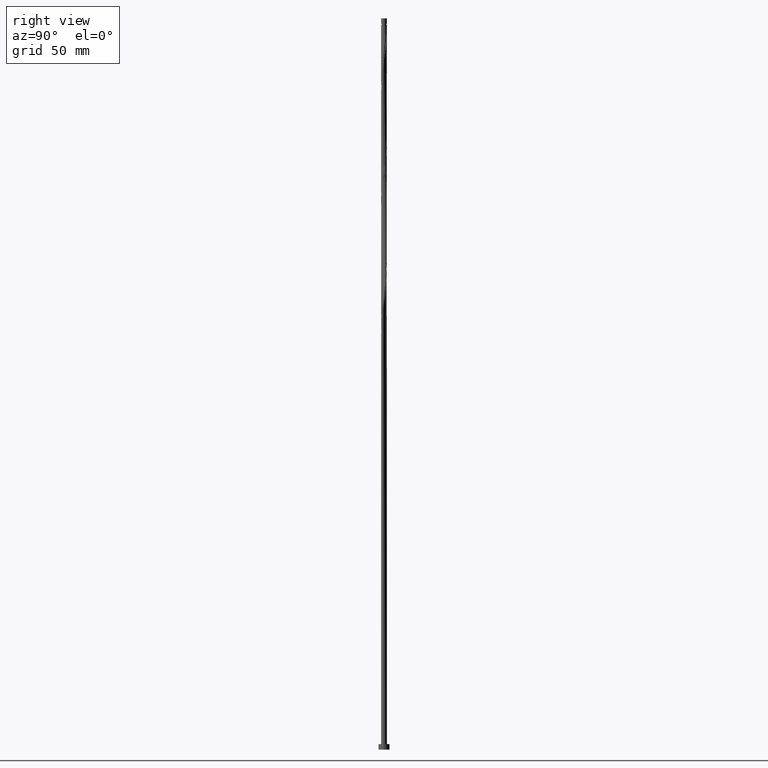
[diagram: clean part render]
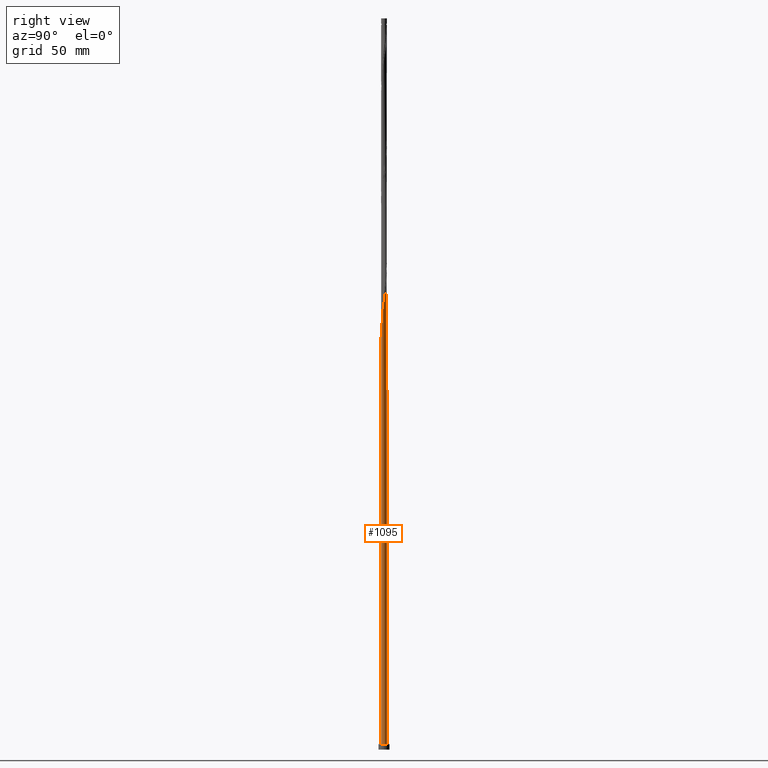
[diagram: same view with one face highlighted and labeled with its STEP entity id]
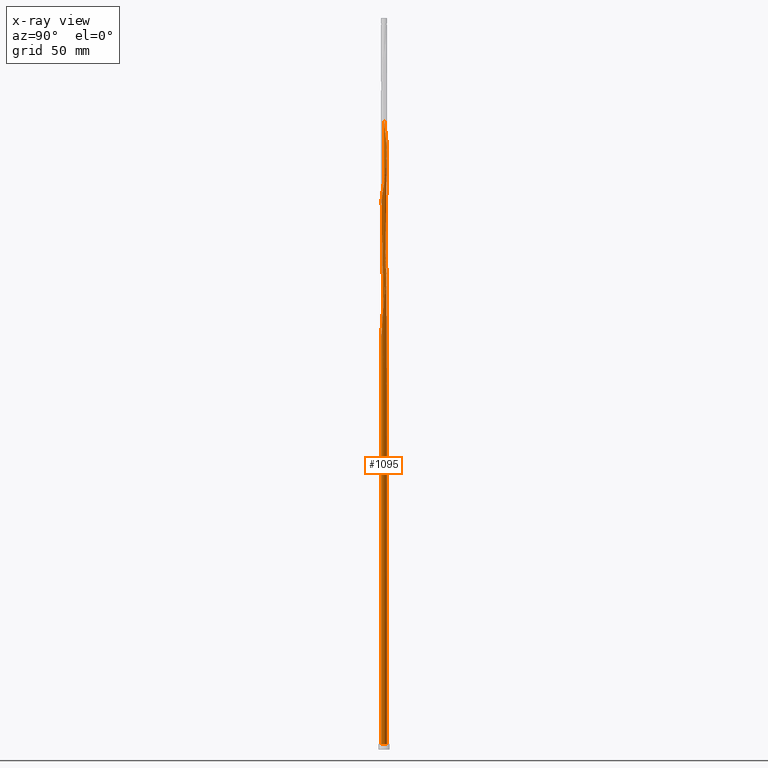
[diagram: x-ray of the same camera — body ghosted, the highlighted face saturated]
A machine part, right view. The second image highlights one B-rep face of the part: STEP entity #1095.
The next image is the same camera in x-ray: the body ghosted, the highlighted face saturated — about 0% of this face is hidden behind the body in this view.
In plain terms, the highlighted cylindrical surface (bore or boss wall) has radius 1.6 mm, axis along (-0, -0, -1).
Its self-contained STEP definition (entity closure, byte-faithful):
#4 = CARTESIAN_POINT ( 'NONE',  ( -0.4831994207707027145, 1.534535234023666650, 330.8669904220065519 ) ) ;
#26 = CARTESIAN_POINT ( 'NONE',  ( -0.7916881692281139138, 1.400539148827139480, 333.0892126442287804 ) ) ;
#27 = CARTESIAN_POINT ( 'NONE',  ( -1.065576345748934672, 1.205332782294399774, 201.9781015331176945 ) ) ;
#33 = AXIS2_PLACEMENT_3D ( 'NONE', #301, #893, #1434 ) ;
#35 = CARTESIAN_POINT ( 'NONE',  ( -1.517125823071062030, 0.5082609929661727755, 340.8669904220065519 ) ) ;
#36 = CARTESIAN_POINT ( 'NONE',  ( -1.087346785281440686, 1.185730590493186298, 206.4225459775621232 ) ) ;
#56 = CARTESIAN_POINT ( 'NONE',  ( 0.7916881692281136917, -1.400539148827139702, 233.0892126442287235 ) ) ;
#63 = CARTESIAN_POINT ( 'NONE',  ( 1.589646386272570044, -0.1817260757584543140, 243.0892126442288088 ) ) ;
#71 = CARTESIAN_POINT ( 'NONE',  ( 1.475620796545632496, 0.6409550136282925470, 248.6447681997842949 ) ) ;
#100 = CARTESIAN_POINT ( 'NONE',  ( -0.1535925389775395500, 1.601464765976337468, 261.9781015331175809 ) ) ;
#112 = CARTESIAN_POINT ( 'NONE',  ( 0.5110606366066614559, 1.525482576237567223, 324.2003237553399231 ) ) ;
#122 = CARTESIAN_POINT ( 'NONE',  ( -1.310112901112438610, -0.9337474235744704920, 284.2003237553398094 ) ) ;
#132 = CARTESIAN_POINT ( 'NONE',  ( 0.3468938551971877948, 1.561942589606429843, 258.6447681997843233 ) ) ;
#143 = CARTESIAN_POINT ( 'NONE',  ( -1.592691774424295437, -0.1527511429783690311, 278.6447681997843802 ) ) ;
#149 = VERTEX_POINT ( 'NONE', #1861 ) ;
#155 = CARTESIAN_POINT ( 'NONE',  ( -0.3183959798741215486, 1.568000000000001837, 329.7558793108955228 ) ) ;
#156 = CARTESIAN_POINT ( 'NONE',  ( -1.292893722757919139, 0.9574475893469993615, 204.2003237553398662 ) ) ;
#164 = CARTESIAN_POINT ( 'NONE',  ( -0.1535925389775395500, 1.601464765976337468, 328.6447681997843233 ) ) ;
#165 = CARTESIAN_POINT ( 'NONE',  ( -1.600000000000000533, 0.07655039885880274286, 214.7061073621861738 ) ) ;
#173 = CARTESIAN_POINT ( 'NONE',  ( -0.6374437949994082864, 1.467537191425403620, 331.9781015331176945 ) ) ;
#200 = CARTESIAN_POINT ( 'NONE',  ( -0.01456726740508640719, -1.599933684475815410, 227.5336570886732375 ) ) ;
#210 = CARTESIAN_POINT ( 'NONE',  ( 1.065576345748934228, -1.205332782294399996, 235.3114348664510374 ) ) ;
#219 = CARTESIAN_POINT ( 'NONE',  ( 0.9286322574885240710, -1.302935965560770404, 234.2003237553398947 ) ) ;
#226 = CARTESIAN_POINT ( 'NONE',  ( -0.1827270737877125795, -1.598402602975293130, 226.4225459775620664 ) ) ;
#238 = CARTESIAN_POINT ( 'NONE',  ( -0.3183959798741213820, 1.568000000000001837, 196.4225459775620948 ) ) ;
#243 = CARTESIAN_POINT ( 'NONE',  ( 1.087346785281442907, 1.185730590493187186, 319.7558793108954660 ) ) ;
#246 = LINE ( 'NONE', #398, #559 ) ;
#253 = CARTESIAN_POINT ( 'NONE',  ( -1.589646386272570044, 0.1817260757584541198, 276.4225459775620948 ) ) ;
#267 = CARTESIAN_POINT ( 'NONE',  ( 0.1535925389775404382, -1.601464765976337468, 295.3114348664510658 ) ) ;
#276 = CARTESIAN_POINT ( 'NONE',  ( 0.6374437949994080643, -1.467537191425403620, 298.6447681997844370 ) ) ;
#285 = CARTESIAN_POINT ( 'NONE',  ( 0.5110606366066614559, 1.525482576237567223, 257.5336570886731806 ) ) ;
#286 = CARTESIAN_POINT ( 'NONE',  ( -1.378299581423949371, 0.8125824658744330575, 205.3114348664510374 ) ) ;
#296 = CARTESIAN_POINT ( 'NONE',  ( -0.9286322574885245151, 1.302935965560769516, 200.8669904220065519 ) ) ;
#301 = CARTESIAN_POINT ( 'NONE',  ( 0.000000000000000000, 0.000000000000000000, 3.000000000000000000 ) ) ;
#314 = CARTESIAN_POINT ( 'NONE',  ( -1.179235034253427461, 1.081390185820699346, 336.4225459775620948 ) ) ;
#315 = CARTESIAN_POINT ( 'NONE',  ( -0.3183959798741213265, 1.568000000000001837, 196.4225459775621232 ) ) ;
#321 = CARTESIAN_POINT ( 'NONE',  ( -1.600000000000003197, 0.09115797991428506442, 343.6915114246560279 ) ) ;
#322 = CARTESIAN_POINT ( 'NONE',  ( -0.9522025912731599817, 1.285811115666947391, 205.3114348664510374 ) ) ;
#349 = CARTESIAN_POINT ( 'NONE',  ( -1.526128889450613979, -0.4805524037857309416, 214.2003237553398662 ) ) ;
#358 = CARTESIAN_POINT ( 'NONE',  ( -0.6640595169357709215, -1.455687108539138963, 223.0892126442287235 ) ) ;
#368 = CARTESIAN_POINT ( 'NONE',  ( 0.9522025912731623132, 1.285811115666948501, 254.2003237553398947 ) ) ;
#372 = ORIENTED_EDGE ( 'NONE', *, *, #902, .F. ) ;
#377 = CARTESIAN_POINT ( 'NONE',  ( -0.9522025912731623132, -1.285811115666948501, 220.8669904220065803 ) ) ;
#389 = CARTESIAN_POINT ( 'NONE',  ( 1.526128889450614423, 0.4805524037857303865, 314.2003237553399799 ) ) ;
#390 = CARTESIAN_POINT ( 'NONE',  ( 0.3183959798741219371, 1.567999999999999838, 196.4225459775620948 ) ) ;
#397 = CARTESIAN_POINT ( 'NONE',  ( 0.9522025912731623132, 1.285811115666948501, 320.8669904220067224 ) ) ;
#398 = CARTESIAN_POINT ( 'NONE',  ( -1.600000000000000089, 0.000000000000000000, 400.0000000000000000 ) ) ;
#405 = CARTESIAN_POINT ( 'NONE',  ( -0.01456726740508640719, -1.599933684475815410, 294.2003237553399231 ) ) ;
#406 = CARTESIAN_POINT ( 'NONE',  ( -1.600000000000000755, -2.018036081789663311E-16, 215.2146558877503253 ) ) ;
#412 = VERTEX_POINT ( 'NONE', #1540 ) ;
#418 = CARTESIAN_POINT ( 'NONE',  ( -1.517125823071062030, 0.5082609929661727755, 274.2003237553399799 ) ) ;
#419 = LINE ( 'NONE', #856, #969 ) ;
#430 = CARTESIAN_POINT ( 'NONE',  ( -1.576636982355595462, -0.3201497939431680595, 279.7558793108952955 ) ) ;
#431 = CARTESIAN_POINT ( 'NONE',  ( -1.463705440089979160, 0.6677173424018663095, 206.4225459775621232 ) ) ;
#436 = ORIENTED_EDGE ( 'NONE', *, *, #470, .T. ) ;
#440 = CARTESIAN_POINT ( 'NONE',  ( -1.378299581423949371, 0.8125824658744330575, 338.6447681997844370 ) ) ;
#441 = CARTESIAN_POINT ( 'NONE',  ( -0.01456726740508541146, 1.599933684475813411, 198.6447681997843233 ) ) ;
#449 = CARTESIAN_POINT ( 'NONE',  ( -1.517125823071062030, 0.5082609929661727755, 207.5336570886732375 ) ) ;
#470 = EDGE_CURVE ( 'NONE', #1537, #412, #603, .T. ) ;
#509 = CARTESIAN_POINT ( 'NONE',  ( 1.310112901112438832, 0.9337474235744698259, 250.8669904220065519 ) ) ;
#514 = ORIENTED_EDGE ( 'NONE', *, *, #1660, .F. ) ;
#518 = ORIENTED_EDGE ( 'NONE', *, *, #723, .F. ) ;
#519 = CARTESIAN_POINT ( 'NONE',  ( -1.198729843196940870, -1.059739007033828617, 218.6447681997843517 ) ) ;
#522 = ORIENTED_EDGE ( 'NONE', *, *, #681, .T. ) ;
#528 = CARTESIAN_POINT ( 'NONE',  ( 1.592691774424295659, 0.1527511429783681429, 311.9781015331175809 ) ) ;
#529 = AXIS2_PLACEMENT_3D ( 'NONE', #548, #1689, #1871 ) ;
#538 = CARTESIAN_POINT ( 'NONE',  ( 1.378299581423949371, -0.8125824658744331686, 305.3114348664509521 ) ) ;
#546 = CARTESIAN_POINT ( 'NONE',  ( -1.392866848829035442, -0.7873512186013823522, 283.0892126442287804 ) ) ;
#548 = CARTESIAN_POINT ( 'NONE',  ( 0.000000000000000000, 0.000000000000000000, 3.000000000000000000 ) ) ;
#555 = CARTESIAN_POINT ( 'NONE',  ( -1.463705440089979160, 0.6677173424018663095, 273.0892126442287235 ) ) ;
#559 = VECTOR ( 'NONE', #835, 1000.000000000000000 ) ;
#565 = CARTESIAN_POINT ( 'NONE',  ( -1.065576345748934672, 1.205332782294399774, 268.6447681997842665 ) ) ;
#574 = CARTESIAN_POINT ( 'NONE',  ( -1.600000000000000755, -2.018036081789663311E-16, 215.2146558877503253 ) ) ;
#592 = CARTESIAN_POINT ( 'NONE',  ( 0.01456726740508662056, 1.599933684475815410, 327.5336570886732943 ) ) ;
#593 = CARTESIAN_POINT ( 'NONE',  ( -0.7916881692281139138, 1.400539148827139480, 199.7558793108954376 ) ) ;
#603 = CIRCLE ( 'NONE', #33, 1.600000000000000089 ) ;
#625 = CARTESIAN_POINT ( 'NONE',  ( 1.292893722757918695, -0.9574475893469995835, 237.5336570886732090 ) ) ;
#635 = CARTESIAN_POINT ( 'NONE',  ( 1.592691774424295659, 0.1527511429783681429, 245.3114348664510089 ) ) ;
#644 = CARTESIAN_POINT ( 'NONE',  ( 1.392866848829035442, 0.7873512186013821301, 249.7558793108954376 ) ) ;
#671 = CARTESIAN_POINT ( 'NONE',  ( -1.378299581423949371, 0.8125824658744330575, 271.9781015331175809 ) ) ;
#681 = EDGE_CURVE ( 'NONE', #412, #1537, #1341, .T. ) ;
#685 = CARTESIAN_POINT ( 'NONE',  ( 0.3468938551971877948, 1.561942589606429843, 325.3114348664509521 ) ) ;
#686 = DIRECTION ( 'NONE',  ( -2.407412430484048740E-29, -4.336808689942026571E-14, -1.000000000000000000 ) ) ;
#697 = CARTESIAN_POINT ( 'NONE',  ( 0.6640595169357711436, 1.455687108539138963, 256.4225459775621516 ) ) ;
#703 = VERTEX_POINT ( 'NONE', #406 ) ;
#708 = CARTESIAN_POINT ( 'NONE',  ( 0.3183959798741216596, -1.568000000000001837, 296.4225459775620379 ) ) ;
#719 = CARTESIAN_POINT ( 'NONE',  ( -1.198729843196940870, -1.059739007033828617, 285.3114348664510089 ) ) ;
#720 = CARTESIAN_POINT ( 'NONE',  ( -1.600000000000003197, 0.09115797991428660485, 210.3581780913227135 ) ) ;
#723 = EDGE_CURVE ( 'NONE', #1616, #412, #419, .T. ) ;
#738 = CARTESIAN_POINT ( 'NONE',  ( -1.292893722757919139, 0.9574475893469993615, 337.5336570886732375 ) ) ;
#739 = CARTESIAN_POINT ( 'NONE',  ( 0.1535925389775409378, 1.601464765976335469, 197.5336570886731806 ) ) ;
#752 = CARTESIAN_POINT ( 'NONE',  ( -1.392866848829033222, 0.7873512186013812419, 209.7558793108954092 ) ) ;
#758 = CARTESIAN_POINT ( 'NONE',  ( -1.463705440089979160, 0.6677173424018663095, 339.7558793108954092 ) ) ;
#759 = CARTESIAN_POINT ( 'NONE',  ( -1.475620796545629831, 0.6409550136282937682, 210.8669904220065803 ) ) ;
#776 = AXIS2_PLACEMENT_3D ( 'NONE', #1169, #1632, #1497 ) ;
#783 = CARTESIAN_POINT ( 'NONE',  ( -1.600000000000002531, 8.819565098191803354E-16, 210.9637694007072639 ) ) ;
#791 = CARTESIAN_POINT ( 'NONE',  ( 1.517125823071062474, -0.5082609929661735526, 240.8669904220065519 ) ) ;
#804 = CARTESIAN_POINT ( 'NONE',  ( 1.600000000000000089, 0.000000000000000000, 3.000000000000000000 ) ) ;
#811 = CARTESIAN_POINT ( 'NONE',  ( 1.608746566492994745, -0.01464750798643017597, 244.2003237553398947 ) ) ;
#820 = CARTESIAN_POINT ( 'NONE',  ( -0.3468938551971870732, -1.561942589606430287, 225.3114348664510374 ) ) ;
#834 = CARTESIAN_POINT ( 'NONE',  ( 0.7916881692281136917, -1.400539148827139702, 299.7558793108954092 ) ) ;
#835 = DIRECTION ( 'NONE',  ( -0.000000000000000000, -0.000000000000000000, -1.000000000000000000 ) ) ;
#843 = CARTESIAN_POINT ( 'NONE',  ( 1.570546206052145122, -0.3488046435304797965, 308.6447681997842665 ) ) ;
#855 = CARTESIAN_POINT ( 'NONE',  ( -1.292893722757919139, 0.9574475893469993615, 270.8669904220065519 ) ) ;
#856 = CARTESIAN_POINT ( 'NONE',  ( -1.600000000000000089, 0.000000000000000000, 400.0000000000000000 ) ) ;
#857 = VERTEX_POINT ( 'NONE', #390 ) ;
#866 = CARTESIAN_POINT ( 'NONE',  ( -1.179235034253427461, 1.081390185820699346, 269.7558793108954092 ) ) ;
#875 = CARTESIAN_POINT ( 'NONE',  ( -0.3183959798741215486, 1.568000000000001837, 263.0892126442287804 ) ) ;
#876 = EDGE_CURVE ( 'NONE', #1533, #857, #910, .T. ) ;
#877 = CARTESIAN_POINT ( 'NONE',  ( -1.589646386272570044, 0.1817260757584541198, 209.7558793108954660 ) ) ;
#888 = FACE_OUTER_BOUND ( 'NONE', #1864, .T. ) ;
#891 = ORIENTED_EDGE ( 'NONE', *, *, #1132, .F. ) ;
#893 = DIRECTION ( 'NONE',  ( 0.000000000000000000, 0.000000000000000000, 1.000000000000000000 ) ) ;
#902 = EDGE_CURVE ( 'NONE', #149, #703, #246, .T. ) ;
#910 = CIRCLE ( 'NONE', #1277, 1.600000000000000089 ) ;
#916 = CARTESIAN_POINT ( 'NONE',  ( -0.6640595169357694783, 1.455687108539137187, 203.0892126442288088 ) ) ;
#935 = CARTESIAN_POINT ( 'NONE',  ( -1.576636982355595462, -0.3201497939431680595, 213.0892126442287520 ) ) ;
#945 = CARTESIAN_POINT ( 'NONE',  ( 1.378299581423949371, -0.8125824658744331686, 238.6447681997843802 ) ) ;
#953 = CARTESIAN_POINT ( 'NONE',  ( 1.576636982355595462, 0.3201497939431680595, 246.4225459775620664 ) ) ;
#963 = CARTESIAN_POINT ( 'NONE',  ( 1.179235034253427017, -1.081390185820699346, 236.4225459775621232 ) ) ;
#969 = VECTOR ( 'NONE', #1147, 1000.000000000000000 ) ;
#979 = CARTESIAN_POINT ( 'NONE',  ( 1.310112901112438832, 0.9337474235744698259, 317.5336570886731806 ) ) ;
#980 = CARTESIAN_POINT ( 'NONE',  ( 0.000000000000000000, 0.000000000000000000, 196.4225459775621516 ) ) ;
#987 = CARTESIAN_POINT ( 'NONE',  ( 0.6640595169357711436, 1.455687108539138963, 323.0892126442287804 ) ) ;
#1000 = CARTESIAN_POINT ( 'NONE',  ( 1.065576345748934228, -1.205332782294399996, 301.9781015331176377 ) ) ;
#1011 = CARTESIAN_POINT ( 'NONE',  ( -1.475620796545631830, -0.6409550136282935462, 281.9781015331176377 ) ) ;
#1021 = CARTESIAN_POINT ( 'NONE',  ( 1.517125823071062474, -0.5082609929661735526, 307.5336570886731238 ) ) ;
#1022 = CARTESIAN_POINT ( 'NONE',  ( -1.576636982355593464, 0.3201497939431680040, 213.0892126442288372 ) ) ;
#1038 = CARTESIAN_POINT ( 'NONE',  ( -1.570546206052145344, 0.3488046435304789084, 208.6447681997842949 ) ) ;
#1048 = CARTESIAN_POINT ( 'NONE',  ( -1.592691774424293660, 0.1527511429783695862, 214.2003237553398947 ) ) ;
#1055 = CARTESIAN_POINT ( 'NONE',  ( -1.600000000000002975, -1.569583619169727394E-16, 344.2971027340406067 ) ) ;
#1056 = CARTESIAN_POINT ( 'NONE',  ( -1.310112901112436168, 0.9337474235744698259, 208.6447681997844086 ) ) ;
#1064 = CARTESIAN_POINT ( 'NONE',  ( -1.570546206052145344, 0.3488046435304789084, 341.9781015331176377 ) ) ;
#1071 = EDGE_CURVE ( 'NONE', #1533, #1616, #1740, .T. ) ;
#1085 = CARTESIAN_POINT ( 'NONE',  ( -0.5110606366066613448, -1.525482576237567223, 224.2003237553398662 ) ) ;
#1095 = ADVANCED_FACE ( 'NONE', ( #888 ), #1893, .T. ) ;
#1102 = CARTESIAN_POINT ( 'NONE',  ( 1.198729843196941758, 1.059739007033828173, 251.9781015331177230 ) ) ;
#1125 = CARTESIAN_POINT ( 'NONE',  ( 1.292893722757918695, -0.9574475893469995835, 304.2003237553399231 ) ) ;
#1132 = EDGE_CURVE ( 'NONE', #703, #857, #1823, .T. ) ;
#1135 = CARTESIAN_POINT ( 'NONE',  ( 0.01456726740508662056, 1.599933684475815410, 260.8669904220065519 ) ) ;
#1146 = CARTESIAN_POINT ( 'NONE',  ( -0.8170583972648806093, -1.385891640840709815, 288.6447681997843802 ) ) ;
#1147 = DIRECTION ( 'NONE',  ( -0.000000000000000000, -0.000000000000000000, -1.000000000000000000 ) ) ;
#1150 = ORIENTED_EDGE ( 'NONE', *, *, #723, .T. ) ;
#1156 = CARTESIAN_POINT ( 'NONE',  ( -0.6374437949994082864, 1.467537191425403620, 265.3114348664509521 ) ) ;
#1168 = CARTESIAN_POINT ( 'NONE',  ( -0.7916881692281139138, 1.400539148827139480, 266.4225459775620379 ) ) ;
#1169 = CARTESIAN_POINT ( 'NONE',  ( 0.000000000000000000, 0.000000000000000000, 400.0000000000000000 ) ) ;
#1178 = CARTESIAN_POINT ( 'NONE',  ( -1.179235034253427461, 1.081390185820699346, 203.0892126442288372 ) ) ;
#1203 = CARTESIAN_POINT ( 'NONE',  ( -0.4831994207707027145, 1.534535234023666650, 197.5336570886732090 ) ) ;
#1252 = CARTESIAN_POINT ( 'NONE',  ( 0.6374437949994080643, -1.467537191425403620, 231.9781015331176661 ) ) ;
#1269 = CARTESIAN_POINT ( 'NONE',  ( -1.392866848829035442, -0.7873512186013823522, 216.4225459775620948 ) ) ;
#1277 = AXIS2_PLACEMENT_3D ( 'NONE', #980, #686, #1562 ) ;
#1280 = CARTESIAN_POINT ( 'NONE',  ( -0.4831994207707027145, 1.534535234023666650, 264.2003237553399231 ) ) ;
#1290 = CARTESIAN_POINT ( 'NONE',  ( 1.392866848829035442, 0.7873512186013821301, 316.4225459775622085 ) ) ;
#1299 = CARTESIAN_POINT ( 'NONE',  ( 0.9286322574885240710, -1.302935965560770404, 300.8669904220065519 ) ) ;
#1308 = CARTESIAN_POINT ( 'NONE',  ( -0.9286322574885245151, 1.302935965560769516, 267.5336570886732943 ) ) ;
#1312 =( BOUNDED_CURVE ( )  B_SPLINE_CURVE ( 2, ( #1688, #1812, #1410, #935, #349, #1394, #1269, #1830, #519, #1515, #377, #1552, #358, #1085, #820, #226, #200, #1661, #1377, #1822, #1252, #56, #219, #210, #963, #625, #945, #1525, #791, #1386, #63, #811, #635, #953, #1534, #71, #644, #509, #1102, #1677, #368, #1842, #697, #285, #132, #1598, #1135, #100, #875, #1280, #1156, #1168, #1308, #565, #866, #855, #671, #555, #418, #1570, #253, #1457, #143, #430, #1870, #1011, #546, #122, #719, #1851, #1859, #1146, #1716, #1448, #1439, #1736, #405, #267, #708, #1590, #276, #834, #1299, #1000, #1727, #1125, #538, #1882, #1021, #843, #1582, #1429, #528, #1697, #389, #1707, #1290, #979, #1561, #243, #397, #1419, #987, #112, #685, #1892, #592, #164, #155, #4, #173, #26, #1624, #1319, #314, #738, #440, #758, #35, #1064, #1641, #321, #1055 ),
 .UNSPECIFIED., .F., .T. ) 
 B_SPLINE_CURVE_WITH_KNOTS ( ( 3, 2, 2, 2, 2, 2, 2, 2, 2, 2, 2, 2, 2, 2, 2, 2, 2, 2, 2, 2, 2, 2, 2, 2, 2, 2, 2, 2, 2, 2, 2, 2, 2, 2, 2, 2, 2, 2, 2, 2, 2, 2, 2, 2, 2, 2, 2, 2, 2, 2, 2, 2, 2, 2, 2, 2, 2, 2, 2, 2, 2, 3 ),
 ( 0.05452860127731166268, 0.05833333333333334814, 0.06666666666666665186, 0.07499999999999995559, 0.08333333333333337034, 0.09166666666666667407, 0.09999999999999997780, 0.1083333333333332815, 0.1166666666666666963, 0.1250000000000000000, 0.1333333333333333037, 0.1416666666666667185, 0.1500000000000000222, 0.1583333333333333259, 0.1666666666666666297, 0.1750000000000000444, 0.1833333333333333481, 0.1916666666666666519, 0.1999999999999999556, 0.2083333333333333703, 0.2166666666666666741, 0.2249999999999999778, 0.2333333333333332815, 0.2416666666666666963, 0.2500000000000000000, 0.2583333333333333037, 0.2666666666666667185, 0.2750000000000000222, 0.2833333333333333259, 0.2916666666666666297, 0.3000000000000000444, 0.3083333333333333481, 0.3166666666666666519, 0.3249999999999999556, 0.3333333333333333703, 0.3416666666666666741, 0.3499999999999999778, 0.3583333333333332815, 0.3666666666666666963, 0.3750000000000000000, 0.3833333333333333037, 0.3916666666666667185, 0.4000000000000000222, 0.4083333333333333259, 0.4166666666666666297, 0.4250000000000000444, 0.4333333333333333481, 0.4416666666666666519, 0.4499999999999999556, 0.4583333333333333703, 0.4666666666666666741, 0.4749999999999999778, 0.4833333333333332815, 0.4916666666666666963, 0.5000000000000000000, 0.5083333333333333037, 0.5166666666666666075, 0.5250000000000000222, 0.5333333333333333259, 0.5416666666666667407, 0.5500000000000000444, 0.5545286012773117390 ),
 .UNSPECIFIED. ) 
 CURVE ( )  GEOMETRIC_REPRESENTATION_ITEM ( )  RATIONAL_B_SPLINE_CURVE ( ( 0.9066196499552957588, 0.9068171577857085941, 0.9090909090910075374, 0.9041108139712555891, 0.9090909090910075374, 0.9041108139712555891, 0.9090909090910075374, 0.9041108139712555891, 0.9090909090910075374, 0.9041108139712555891, 0.9090909090910075374, 0.9041108139712555891, 0.9090909090910075374, 0.9041108139712555891, 0.9090909090910075374, 0.9041108139712555891, 0.9090909090910075374, 0.9041108139712555891, 0.9090909090910075374, 0.9041108139712555891, 0.9090909090910075374, 0.9041108139712555891, 0.9090909090910075374, 0.9041108139712555891, 0.9090909090910075374, 0.9041108139712555891, 0.9090909090910075374, 0.9041108139712555891, 0.9090909090910075374, 0.9041108139712555891, 0.9090909090910075374, 0.9041108139712555891, 0.9090909090910075374, 0.9041108139712555891, 0.9090909090910075374, 0.9041108139712555891, 0.9090909090910075374, 0.9041108139712555891, 0.9090909090910075374, 0.9041108139712555891, 0.9090909090910075374, 0.9041108139712555891, 0.9090909090910075374, 0.9041108139712555891, 0.9090909090910075374, 0.9041108139712555891, 0.9090909090910075374, 0.9041108139712555891, 0.9090909090910075374, 0.9041108139712555891, 0.9090909090910075374, 0.9041108139712555891, 0.9090909090910075374, 0.9041108139712555891, 0.9090909090910075374, 0.9041108139712555891, 0.9090909090910075374, 0.9041108139712555891, 0.9090909090910075374, 0.9041108139712555891, 0.9090909090910075374, 0.9041108139712555891, 0.9090909090910075374, 0.9041108139712555891, 0.9090909090910075374, 0.9041108139712555891, 0.9090909090910075374, 0.9041108139712555891, 0.9090909090910075374, 0.9041108139712555891, 0.9090909090910075374, 0.9041108139712555891, 0.9090909090910075374, 0.9041108139712555891, 0.9090909090910075374, 0.9041108139712555891, 0.9090909090910075374, 0.9041108139712555891, 0.9090909090910075374, 0.9041108139712555891, 0.9090909090910075374, 0.9041108139712555891, 0.9090909090910075374, 0.9041108139712555891, 0.9090909090910075374, 0.9041108139712555891, 0.9090909090910075374, 0.9041108139712555891, 0.9090909090910075374, 0.9041108139712555891, 0.9090909090910075374, 0.9041108139712555891, 0.9090909090910075374, 0.9041108139712555891, 0.9090909090910075374, 0.9041108139712555891, 0.9090909090910075374, 0.9041108139712555891, 0.9090909090910075374, 0.9041108139712555891, 0.9090909090910075374, 0.9041108139712555891, 0.9090909090910075374, 0.9041108139712555891, 0.9090909090910075374, 0.9041108139712555891, 0.9090909090910075374, 0.9041108139712555891, 0.9090909090910075374, 0.9041108139712555891, 0.9090909090910075374, 0.9041108139712555891, 0.9090909090910075374, 0.9041108139712555891, 0.9090909090910075374, 0.9041108139712555891, 0.9090909090910075374, 0.9041108139712555891, 0.9090909090910075374, 0.9041108139712555891, 0.9090909090910075374, 0.9063845652765544214, 0.9066196499552958699 ) ) 
 REPRESENTATION_ITEM ( '' )  );
#1319 = CARTESIAN_POINT ( 'NONE',  ( -1.065576345748934672, 1.205332782294399774, 335.3114348664510658 ) ) ;
#1341 = CIRCLE ( 'NONE', #529, 1.600000000000000089 ) ;
#1357 = CARTESIAN_POINT ( 'NONE',  ( -0.3468938551971859074, 1.561942589606428067, 200.8669904220065234 ) ) ;
#1377 = CARTESIAN_POINT ( 'NONE',  ( 0.3183959798741216596, -1.568000000000001837, 229.7558793108954944 ) ) ;
#1386 = CARTESIAN_POINT ( 'NONE',  ( 1.570546206052145122, -0.3488046435304797965, 241.9781015331176661 ) ) ;
#1394 = CARTESIAN_POINT ( 'NONE',  ( -1.475620796545631830, -0.6409550136282935462, 215.3114348664509805 ) ) ;
#1408 = ORIENTED_EDGE ( 'NONE', *, *, #1071, .F. ) ;
#1410 = CARTESIAN_POINT ( 'NONE',  ( -1.592691774424295437, -0.1527511429783690311, 211.9781015331176945 ) ) ;
#1419 = CARTESIAN_POINT ( 'NONE',  ( 0.8170583972648817195, 1.385891640840709371, 321.9781015331176377 ) ) ;
#1429 = CARTESIAN_POINT ( 'NONE',  ( 1.608746566492994745, -0.01464750798643017597, 310.8669904220065519 ) ) ;
#1434 = DIRECTION ( 'NONE',  ( 1.000000000000000000, 0.000000000000000000, 0.000000000000000000 ) ) ;
#1439 = CARTESIAN_POINT ( 'NONE',  ( -0.3468938551971870732, -1.561942589606430287, 291.9781015331176377 ) ) ;
#1448 = CARTESIAN_POINT ( 'NONE',  ( -0.5110606366066613448, -1.525482576237567223, 290.8669904220064950 ) ) ;
#1457 = CARTESIAN_POINT ( 'NONE',  ( -1.608746566492994745, 0.01464750798642964862, 277.5336570886731806 ) ) ;
#1459 = CARTESIAN_POINT ( 'NONE',  ( 0.3183959798741219371, 1.567999999999999838, 196.4225459775620948 ) ) ;
#1469 = CARTESIAN_POINT ( 'NONE',  ( -1.198729843196938649, 1.059739007033828395, 207.5336570886732090 ) ) ;
#1487 = CARTESIAN_POINT ( 'NONE',  ( -0.8170583972648792770, 1.385891640840708705, 204.2003237553398947 ) ) ;
#1497 = DIRECTION ( 'NONE',  ( -1.000000000000000000, 0.000000000000000000, 0.000000000000000000 ) ) ;
#1515 = CARTESIAN_POINT ( 'NONE',  ( -1.087346785281442685, -1.185730590493187186, 219.7558793108954092 ) ) ;
#1525 = CARTESIAN_POINT ( 'NONE',  ( 1.463705440089979160, -0.6677173424018667536, 239.7558793108953807 ) ) ;
#1533 = VERTEX_POINT ( 'NONE', #238 ) ;
#1534 = CARTESIAN_POINT ( 'NONE',  ( 1.526128889450614423, 0.4805524037857303865, 247.5336570886732943 ) ) ;
#1537 = VERTEX_POINT ( 'NONE', #804 ) ;
#1540 = CARTESIAN_POINT ( 'NONE',  ( -1.600000000000000089, 0.000000000000000000, 3.000000000000000000 ) ) ;
#1552 = CARTESIAN_POINT ( 'NONE',  ( -0.8170583972648806093, -1.385891640840709815, 221.9781015331176945 ) ) ;
#1561 = CARTESIAN_POINT ( 'NONE',  ( 1.198729843196941758, 1.059739007033828173, 318.6447681997843802 ) ) ;
#1562 = DIRECTION ( 'NONE',  ( 0.000000000000000000, 1.000000000000000000, -5.204170427930421283E-14 ) ) ;
#1570 = CARTESIAN_POINT ( 'NONE',  ( -1.570546206052145344, 0.3488046435304789084, 275.3114348664510089 ) ) ;
#1582 = CARTESIAN_POINT ( 'NONE',  ( 1.589646386272570044, -0.1817260757584543140, 309.7558793108955228 ) ) ;
#1590 = CARTESIAN_POINT ( 'NONE',  ( 0.4831994207707020483, -1.534535234023666872, 297.5336570886731238 ) ) ;
#1598 = CARTESIAN_POINT ( 'NONE',  ( 0.1827270737877127738, 1.598402602975293130, 259.7558793108954092 ) ) ;
#1599 = CARTESIAN_POINT ( 'NONE',  ( -0.6374437949994082864, 1.467537191425403620, 198.6447681997843233 ) ) ;
#1609 = CARTESIAN_POINT ( 'NONE',  ( -0.1827270737877119133, 1.598402602975290909, 199.7558793108954376 ) ) ;
#1616 = VERTEX_POINT ( 'NONE', #783 ) ;
#1617 = CARTESIAN_POINT ( 'NONE',  ( -0.5110606366066599016, 1.525482576237565890, 201.9781015331177230 ) ) ;
#1624 = CARTESIAN_POINT ( 'NONE',  ( -0.9286322574885245151, 1.302935965560769516, 334.2003237553399799 ) ) ;
#1632 = DIRECTION ( 'NONE',  ( -0.000000000000000000, -0.000000000000000000, -1.000000000000000000 ) ) ;
#1641 = CARTESIAN_POINT ( 'NONE',  ( -1.589646386272570044, 0.1817260757584541198, 343.0892126442288372 ) ) ;
#1660 = EDGE_CURVE ( 'NONE', #1616, #149, #1312, .T. ) ;
#1661 = CARTESIAN_POINT ( 'NONE',  ( 0.1535925389775404382, -1.601464765976337468, 228.6447681997843802 ) ) ;
#1677 = CARTESIAN_POINT ( 'NONE',  ( 1.087346785281442907, 1.185730590493187186, 253.0892126442287804 ) ) ;
#1688 = CARTESIAN_POINT ( 'NONE',  ( -1.600000000000002753, 8.819565098191803354E-16, 210.9637694007072639 ) ) ;
#1689 = DIRECTION ( 'NONE',  ( 0.000000000000000000, 0.000000000000000000, 1.000000000000000000 ) ) ;
#1697 = CARTESIAN_POINT ( 'NONE',  ( 1.576636982355595462, 0.3201497939431680595, 313.0892126442287804 ) ) ;
#1707 = CARTESIAN_POINT ( 'NONE',  ( 1.475620796545632496, 0.6409550136282925470, 315.3114348664508952 ) ) ;
#1716 = CARTESIAN_POINT ( 'NONE',  ( -0.6640595169357709215, -1.455687108539138963, 289.7558793108953523 ) ) ;
#1727 = CARTESIAN_POINT ( 'NONE',  ( 1.179235034253427017, -1.081390185820699346, 303.0892126442289509 ) ) ;
#1736 = CARTESIAN_POINT ( 'NONE',  ( -0.1827270737877125795, -1.598402602975293130, 293.0892126442287235 ) ) ;
#1740 =( BOUNDED_CURVE ( )  B_SPLINE_CURVE ( 2, ( #315, #1203, #1599, #593, #296, #27, #1178, #156, #286, #431, #449, #1038, #877, #720, #1746 ),
 .UNSPECIFIED., .F., .T. ) 
 B_SPLINE_CURVE_WITH_KNOTS ( ( 3, 2, 2, 2, 2, 2, 2, 3 ),
 ( 0.000000000000000000, 0.008333333333333303727, 0.01666666666666671848, 0.02500000000000002220, 0.03333333333333332593, 0.04166666666666662966, 0.05000000000000004441, 0.05452860127731166268 ),
 .UNSPECIFIED. ) 
 CURVE ( )  GEOMETRIC_REPRESENTATION_ITEM ( )  RATIONAL_B_SPLINE_CURVE ( ( 0.9090909090910075374, 0.9041108139712555891, 0.9090909090910075374, 0.9041108139712555891, 0.9090909090910075374, 0.9041108139712555891, 0.9090909090910075374, 0.9041108139712555891, 0.9090909090910075374, 0.9041108139712555891, 0.9090909090910075374, 0.9041108139712555891, 0.9090909090910075374, 0.9063845652765545324, 0.9066196499552957588 ) ) 
 REPRESENTATION_ITEM ( '' )  );
#1746 = CARTESIAN_POINT ( 'NONE',  ( -1.600000000000002753, 8.819565098191803354E-16, 210.9637694007072639 ) ) ;
#1776 = CARTESIAN_POINT ( 'NONE',  ( -1.526128889450611759, 0.4805524037857308861, 211.9781015331176945 ) ) ;
#1812 = CARTESIAN_POINT ( 'NONE',  ( -1.600000000000002753, -0.07655039885880501882, 211.4723179262713870 ) ) ;
#1820 = ORIENTED_EDGE ( 'NONE', *, *, #876, .T. ) ;
#1822 = CARTESIAN_POINT ( 'NONE',  ( 0.4831994207707020483, -1.534535234023666872, 230.8669904220064950 ) ) ;
#1823 =( BOUNDED_CURVE ( )  B_SPLINE_CURVE ( 2, ( #574, #165, #1048, #1022, #1776, #759, #752, #1056, #1469, #36, #322, #1487, #916, #1617, #1357, #1609, #441, #739, #1459 ),
 .UNSPECIFIED., .F., .T. ) 
 B_SPLINE_CURVE_WITH_KNOTS ( ( 3, 2, 2, 2, 2, 2, 2, 2, 2, 3 ),
 ( 0.9295286012773115170, 0.9333333333333333481, 0.9416666666666666519, 0.9499999999999999556, 0.9583333333333333703, 0.9666666666666666741, 0.9749999999999999778, 0.9833333333333332815, 0.9916666666666666963, 1.000000000000000000 ),
 .UNSPECIFIED. ) 
 CURVE ( )  GEOMETRIC_REPRESENTATION_ITEM ( )  RATIONAL_B_SPLINE_CURVE ( ( 0.9066196499552896526, 0.9068171577857024879, 0.9090909090910015422, 0.9041108139712494829, 0.9090909090910015422, 0.9041108139712494829, 0.9090909090910015422, 0.9041108139712494829, 0.9090909090910015422, 0.9041108139712494829, 0.9090909090910015422, 0.9041108139712494829, 0.9090909090910015422, 0.9041108139712494829, 0.9090909090910015422, 0.9041108139712494829, 0.9090909090910015422, 0.9041108139712494829, 0.9090909090910015422 ) ) 
 REPRESENTATION_ITEM ( '' )  );
#1830 = CARTESIAN_POINT ( 'NONE',  ( -1.310112901112438610, -0.9337474235744704920, 217.5336570886732659 ) ) ;
#1842 = CARTESIAN_POINT ( 'NONE',  ( 0.8170583972648817195, 1.385891640840709371, 255.3114348664509805 ) ) ;
#1851 = CARTESIAN_POINT ( 'NONE',  ( -1.087346785281442685, -1.185730590493187186, 286.4225459775620948 ) ) ;
#1859 = CARTESIAN_POINT ( 'NONE',  ( -0.9522025912731623132, -1.285811115666948501, 287.5336570886733512 ) ) ;
#1861 = CARTESIAN_POINT ( 'NONE',  ( -1.600000000000002975, -1.569583619169727394E-16, 344.2971027340406067 ) ) ;
#1864 = EDGE_LOOP ( 'NONE', ( #372, #514, #1150, #522, #436, #518, #1408, #1820, #891 ) ) ;
#1870 = CARTESIAN_POINT ( 'NONE',  ( -1.526128889450613979, -0.4805524037857309416, 280.8669904220066655 ) ) ;
#1871 = DIRECTION ( 'NONE',  ( 1.000000000000000000, 0.000000000000000000, 0.000000000000000000 ) ) ;
#1882 = CARTESIAN_POINT ( 'NONE',  ( 1.463705440089979160, -0.6677173424018667536, 306.4225459775622085 ) ) ;
#1892 = CARTESIAN_POINT ( 'NONE',  ( 0.1827270737877127738, 1.598402602975293130, 326.4225459775620948 ) ) ;
#1893 = CYLINDRICAL_SURFACE ( 'NONE', #776, 1.600000000000000089 ) ;